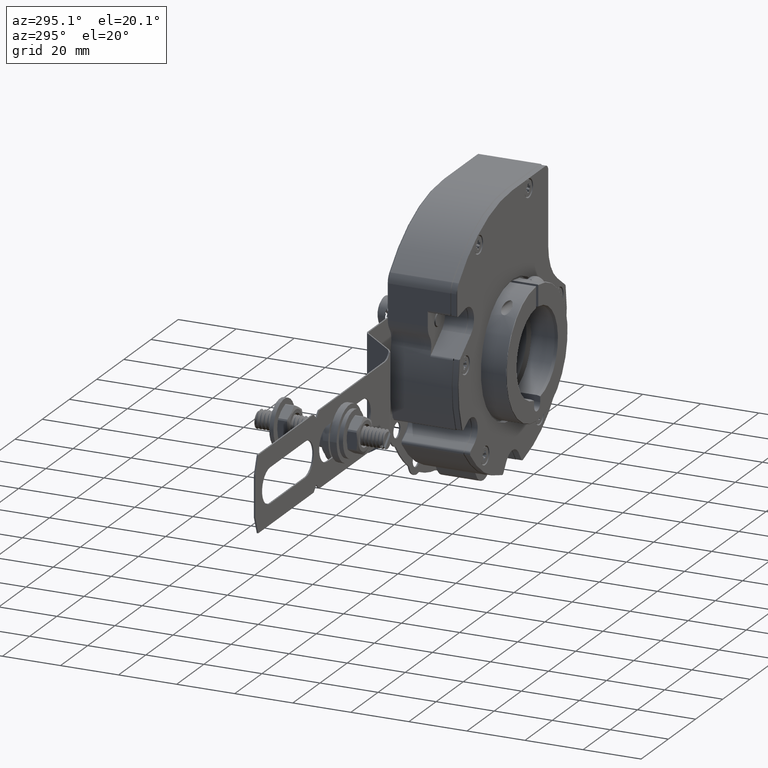
[diagram: clean part render]
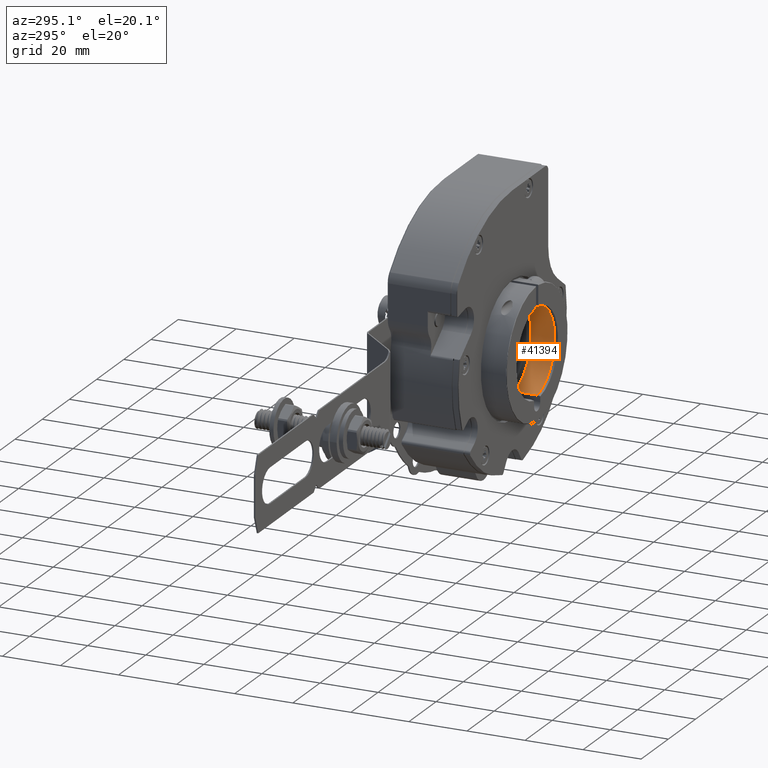
[diagram: same view with one face highlighted and labeled with its STEP entity id]
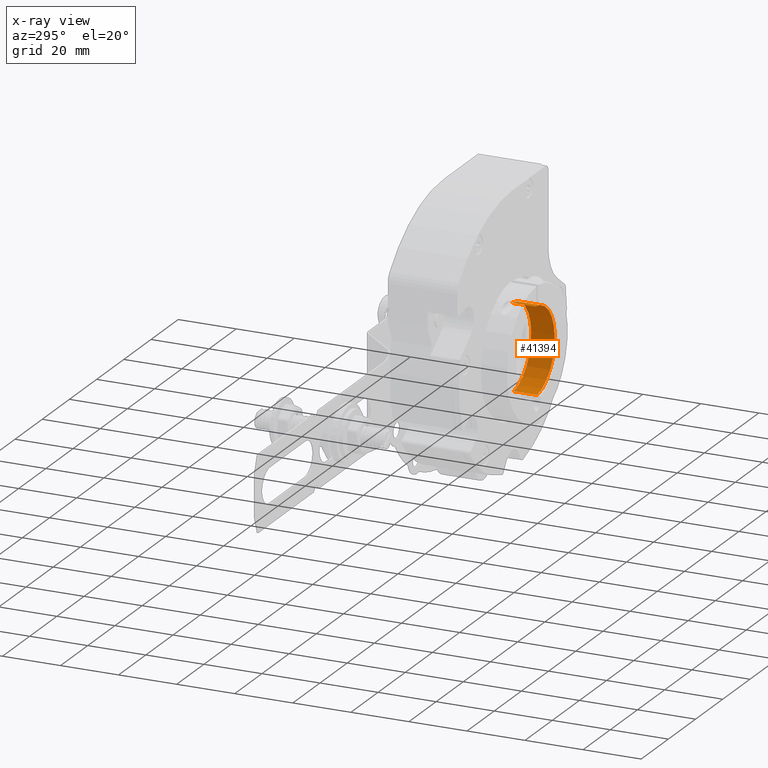
[diagram: x-ray of the same camera — body ghosted, the highlighted face saturated]
A machine part, auxiliary view. The second image highlights one B-rep face of the part: STEP entity #41394.
The next image is the same camera in x-ray: the body ghosted, the highlighted face saturated — about 0% of this face is hidden behind the body in this view.
In plain terms, the highlighted cylindrical surface (partial cylindrical patch) has radius 15 mm, axis along (-0, 1, -0).
Its self-contained STEP definition (entity closure, byte-faithful):
#801 = CARTESIAN_POINT ( 'NONE',  ( 7.611231612924849500E-015, -1.400000000000001900, 4.712047150600318700E-015 ) ) ;
#1780 = EDGE_CURVE ( 'NONE', #10645, #14341, #33119, .T. ) ;
#2533 = CARTESIAN_POINT ( 'NONE',  ( 6.938893903907228400E-015, 24.50000000000000400, 0.0000000000000000000 ) ) ;
#4172 = VECTOR ( 'NONE', #24161, 1000.000000000000000 ) ;
#4420 = DIRECTION ( 'NONE',  ( -5.551115123125763000E-017, -1.879283765641536000E-016, -1.000000000000000000 ) ) ;
#4773 = CYLINDRICAL_SURFACE ( 'NONE', #6434, 15.00000000000003900 ) ;
#6434 = AXIS2_PLACEMENT_3D ( 'NONE', #2533, #13296, #35185 ) ;
#7212 = ORIENTED_EDGE ( 'NONE', *, *, #25230, .T. ) ;
#7267 = CIRCLE ( 'NONE', #17221, 15.00000000000003900 ) ;
#8019 = DIRECTION ( 'NONE',  ( 2.595898490415521000E-017, -1.000000000000000000, 1.819323224170038300E-016 ) ) ;
#10645 = VERTEX_POINT ( 'NONE', #38193 ) ;
#13214 = AXIS2_PLACEMENT_3D ( 'NONE', #801, #26136, #4420 ) ;
#13296 = DIRECTION ( 'NONE',  ( -2.595898490415521000E-017, 1.000000000000000000, -1.819323224170026400E-016 ) ) ;
#14341 = VERTEX_POINT ( 'NONE', #40603 ) ;
#16115 = VERTEX_POINT ( 'NONE', #29304 ) ;
#17221 = AXIS2_PLACEMENT_3D ( 'NONE', #29710, #8019, #33388 ) ;
#21934 = CARTESIAN_POINT ( 'NONE',  ( 0.8000000000000061500, -1.400000000000005500, 14.97865147468227300 ) ) ;
#23810 = ORIENTED_EDGE ( 'NONE', *, *, #45273, .F. ) ;
#24161 = DIRECTION ( 'NONE',  ( 2.595898490415521000E-017, -1.000000000000000000, 1.819323224170026400E-016 ) ) ;
#24860 = DIRECTION ( 'NONE',  ( -2.595898490415521000E-017, 1.000000000000000000, -1.819323224170026400E-016 ) ) ;
#24958 = ORIENTED_EDGE ( 'NONE', *, *, #1780, .T. ) ;
#25230 = EDGE_CURVE ( 'NONE', #14341, #16115, #7267, .T. ) ;
#26136 = DIRECTION ( 'NONE',  ( 2.595898490415521000E-017, -1.000000000000000000, 1.819323224170026400E-016 ) ) ;
#26274 = EDGE_LOOP ( 'NONE', ( #23810, #24958, #7212, #35427 ) ) ;
#29304 = CARTESIAN_POINT ( 'NONE',  ( 0.8000000000000064800, -9.500000000000081700, 14.97865147468226400 ) ) ;
#29710 = CARTESIAN_POINT ( 'NONE',  ( 7.821499390648511400E-015, -9.500000000000081700, 6.185698962178092800E-015 ) ) ;
#32015 = CARTESIAN_POINT ( 'NONE',  ( 0.8000000000000057100, 24.50000000000000000, 14.97865147468225700 ) ) ;
#33119 = LINE ( 'NONE', #42248, #4172 ) ;
#33388 = DIRECTION ( 'NONE',  ( -5.551115123125763000E-017, -2.312964634635736500E-016, -1.000000000000000000 ) ) ;
#35126 = CIRCLE ( 'NONE', #13214, 15.00000000000003900 ) ;
#35185 = DIRECTION ( 'NONE',  ( -5.551115123125763000E-017, -2.312964634635736500E-016, -1.000000000000000000 ) ) ;
#35427 = ORIENTED_EDGE ( 'NONE', *, *, #43839, .T. ) ;
#38193 = CARTESIAN_POINT ( 'NONE',  ( 2.250000000000015500, -1.399999999999998600, -14.83028994996393400 ) ) ;
#39756 = VECTOR ( 'NONE', #24860, 1000.000000000000000 ) ;
#40603 = CARTESIAN_POINT ( 'NONE',  ( 2.250000000000012000, -9.500000000000108400, -14.83028994996393600 ) ) ;
#40899 = LINE ( 'NONE', #32015, #39756 ) ;
#41394 = ADVANCED_FACE ( 'NONE', ( #43339 ), #4773, .F. ) ;
#42248 = CARTESIAN_POINT ( 'NONE',  ( 2.250000000000010700, 24.50000000000000700, -14.83028994996394100 ) ) ;
#43339 = FACE_OUTER_BOUND ( 'NONE', #26274, .T. ) ;
#43839 = EDGE_CURVE ( 'NONE', #16115, #44704, #40899, .T. ) ;
#44704 = VERTEX_POINT ( 'NONE', #21934 ) ;
#45273 = EDGE_CURVE ( 'NONE', #10645, #44704, #35126, .T. ) ;